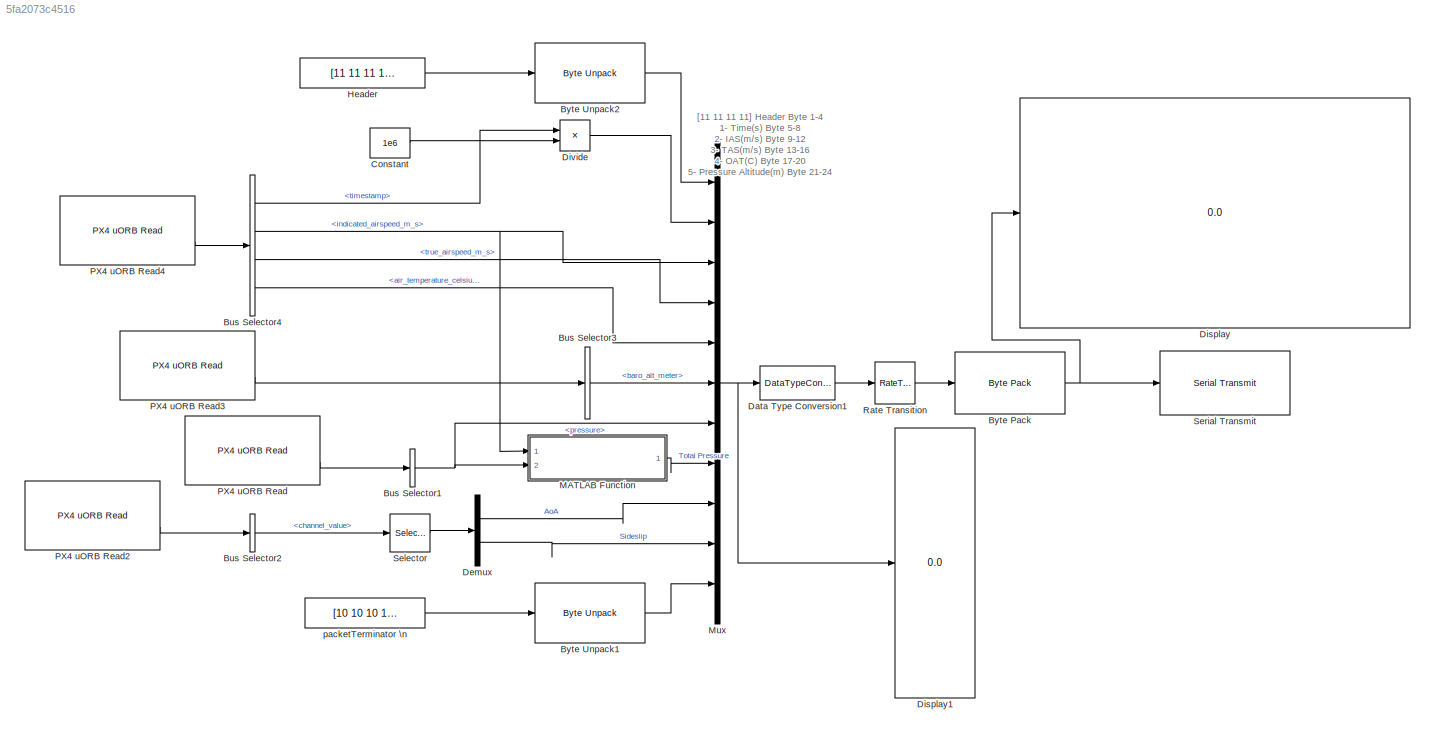
MODEL slx_5fa2073c4516
KIND model
CONFIG AbsTol = auto
CONFIG EnableMultiTasking = on
CONFIG FixedStep = auto
CONFIG InitFcn = Ts = 0.01
CONFIG MaxStep = auto
CONFIG MinStep = auto
CONFIG RelTol = 1e-3
CONFIG SampleTimeConstraint = Unconstrained
CONFIG SolverName = FixedStepAuto
CONFIG StartTime = 0.0
CONFIG StopTime = inf
BLOCK [BusSelector] Bus Selector1
  OutputSignals = pressure
  Ports = [1, 1]
BLOCK [BusSelector] Bus Selector2
  OutputSignals = channel_value
  Ports = [1, 1]
BLOCK [BusSelector] Bus Selector3
  OutputSignals = baro_alt_meter
  Ports = [1, 1]
BLOCK [BusSelector] Bus Selector4
  OutputSignals = timestamp,indicated_airspeed_m_s,true_airspeed_m_s,air_temperature_celsius
  Ports = [1, 4]
BLOCK [Reference] Byte Pack  REF=etargetslib/Byte Pack
  Ports = [1, 1]
  SourceBlock = etargetslib/Byte Pack
  SourceProductBaseCode = ME
  SourceType = Byte pack
BLOCK [Reference] Byte Unpack1  REF=etargetslib/Byte Unpack
  Ports = [1, 1]
  SourceBlock = etargetslib/Byte Unpack
  SourceProductBaseCode = ME
  SourceType = Byte Unpack
BLOCK [Reference] Byte Unpack2  REF=etargetslib/Byte Unpack
  Ports = [1, 1]
  SourceBlock = etargetslib/Byte Unpack
  SourceProductBaseCode = ME
  SourceType = Byte Unpack
BLOCK [Constant] Constant
  Value = 1e6
BLOCK [DataTypeConversion] Data Type Conversion1
  OutDataTypeStr = single
  RndMeth = Floor
  SaturateOnIntegerOverflow = off
BLOCK [Demux] Demux
  Outputs = 2
  Ports = [1, 2]
BLOCK [Display] Display
  Decimation = 1
  Ports = [1]
BLOCK [Display] Display1
  Decimation = 1
  Ports = [1]
BLOCK [Product] Divide
  Inputs = */
  OutDataTypeStr = single
  Ports = [2, 1]
BLOCK [Constant] Header
  OutDataTypeStr = uint8
  SampleTime = -1
  Value = [11 11 11 11]
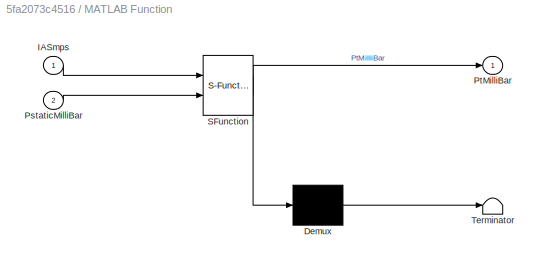
BLOCK [SubSystem] MATLAB Function
  ErrorFcn = Stateflow.Translate.translate
  PermitHierarchicalResolution = ExplicitOnly
  Ports = [2, 1]
  RequestExecContextInheritance = off
  SFBlockType = MATLAB Function
  TreatAsAtomicUnit = on
BLOCK [Demux] MATLAB Function/ Demux 
  Outputs = 1
  Ports = [1, 1]
BLOCK [S-Function] MATLAB Function/ SFunction 
  EnableBusSupport = on
  FunctionName = sf_sfun
  PortCounts = [2 2]
  Ports = [2, 2]
  SFcnIsStateOwnerBlock = off
  SFunctionDeploymentMode = off
  Tag = Stateflow S-Function 2
BLOCK [Terminator] MATLAB Function/ Terminator 
BLOCK [Inport] MATLAB Function/IASmps
BLOCK [Inport] MATLAB Function/PstaticMilliBar
  Port = 2
BLOCK [Outport] MATLAB Function/PtMilliBar
BLOCK [Mux] Mux
  DisplayOption = bar
  Inputs = 11
  Ports = [11, 1]
BLOCK [Reference] PX4 uORB Read  REF=px4uORBlib/PX4 uORB Read
  Ports = [0, 2]
  SourceBlock = px4uORBlib/PX4 uORB Read
  SourceProductBaseCode = PX4AUTOPILOTS
  SourceType = PX4 uORB Read
BLOCK [Reference] PX4 uORB Read2  REF=px4uORBlib/PX4 uORB Read
  Ports = [0, 2]
  SourceBlock = px4uORBlib/PX4 uORB Read
  SourceProductBaseCode = PX4AUTOPILOTS
  SourceType = PX4 uORB Read
BLOCK [Reference] PX4 uORB Read3  REF=px4uORBlib/PX4 uORB Read
  Ports = [0, 2]
  SourceBlock = px4uORBlib/PX4 uORB Read
  SourceProductBaseCode = PX4AUTOPILOTS
  SourceType = PX4 uORB Read
BLOCK [Reference] PX4 uORB Read4  REF=px4uORBlib/PX4 uORB Read
  Ports = [0, 2]
  SourceBlock = px4uORBlib/PX4 uORB Read
  SourceProductBaseCode = PX4AUTOPILOTS
  SourceType = PX4 uORB Read
BLOCK [RateTransition] Rate Transition
  OutPortSampleTime = 0.02
BLOCK [Selector] Selector
  IndexOptions = Index vector (dialog)
  Indices = [7 8]
  InputPortWidth = 12
  OutputSizes = 1
  Ports = [1, 1]
BLOCK [Reference] Serial Transmit  REF=px4lib/Serial Transmit
  Ports = [1]
  SourceBlock = px4lib/Serial Transmit
  SourceProductBaseCode = PX4AUTOPILOTS
  SourceType = PX4 Serial Transmit
BLOCK [Constant] packetTerminator \n
  OutDataTypeStr = uint8
  SampleTime = -1
  Value = [10 10 10 10]
ANNOTATION (root): [11 11 11 11] Header Byte 1-4 1- Time(s) Byte 5-8 2- IAS(m/s) Byte 9-12 3- TAS(m/s) Byte 13-16 4- OAT(C) Byte 17-20 5- Pressure Altitude(m) Byte 21-24 6- Static Pressure(milliBar) Byte 25-28 7- Total Pressure(milliBar) Byte 29-32 8- Angle of Attack(Deg) Byte 33-36 9- Angle of Sideslip(Deg) Byte 37-40 [10 10 10 10] Terminator Byte 41-44
NET Bus Selector1:1 -> MATLAB Function:2, Mux:7
LINE Bus Selector2:1 -> Selector:1
LINE Bus Selector3:1 -> Mux:6
LINE Bus Selector4:1 -> Divide:1
NET Bus Selector4:2 -> MATLAB Function:1, Mux:3
LINE Bus Selector4:3 -> Mux:4
LINE Bus Selector4:4 -> Mux:5
NET Byte Pack:1 -> Display:1, Serial Transmit:1
LINE Byte Unpack1:1 -> Mux:11
LINE Byte Unpack2:1 -> Mux:1
LINE Constant:1 -> Divide:2
LINE Data Type Conversion1:1 -> Rate Transition:1
LINE Demux:1 -> Mux:9
LINE Demux:2 -> Mux:10
LINE Divide:1 -> Mux:2
LINE Header:1 -> Byte Unpack2:1
LINE MATLAB Function:1 -> Mux:8
NET Mux:1 -> Data Type Conversion1:1, Display1:1
LINE PX4 uORB Read2:2 -> Bus Selector2:1
LINE PX4 uORB Read3:2 -> Bus Selector3:1
LINE PX4 uORB Read4:2 -> Bus Selector4:1
LINE PX4 uORB Read:2 -> Bus Selector1:1
LINE Rate Transition:1 -> Byte Pack:1
LINE Selector:1 -> Demux:1
LINE packetTerminator \n:1 -> Byte Unpack1:1
note: NET lines group one-source signal fan-out (src -> all destinations, sorted); 1:1 wires keep LINE
CHART MATLAB Function states=1 transitions=1
  STATE_LABEL 'eML_blk_kernel()'
  STATE_LABEL 'SCRIPT:\nfunction PtMilliBar = Ptotal(IASmps,PstaticMilliBar)\nro0 = 1.225;\nPtMilliBar = 0.5*ro0*IASmps^2/100 + PstaticMilliBar;\nend\n'
CHART  states=0 transitions=0
